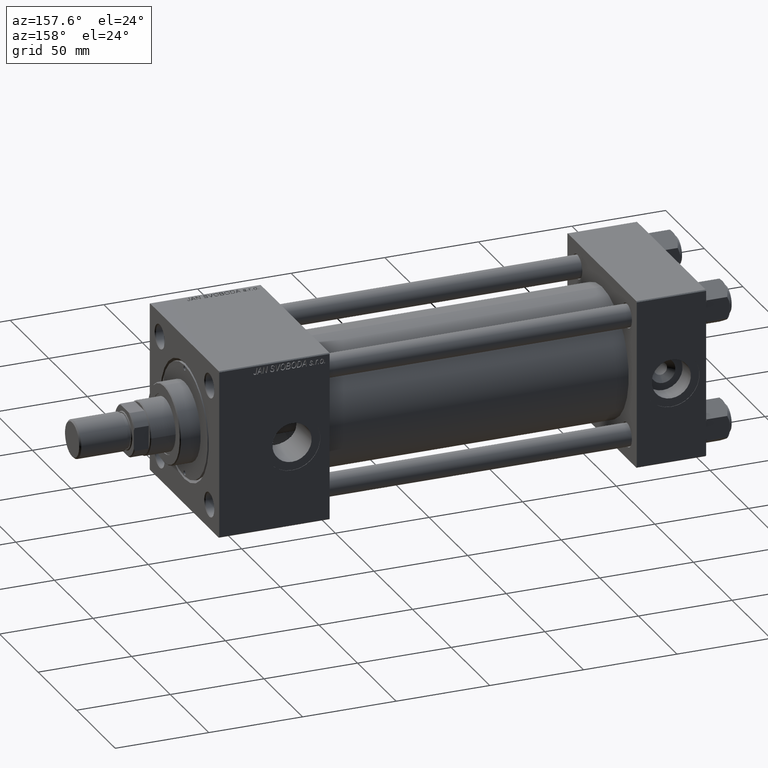
[diagram: clean part render]
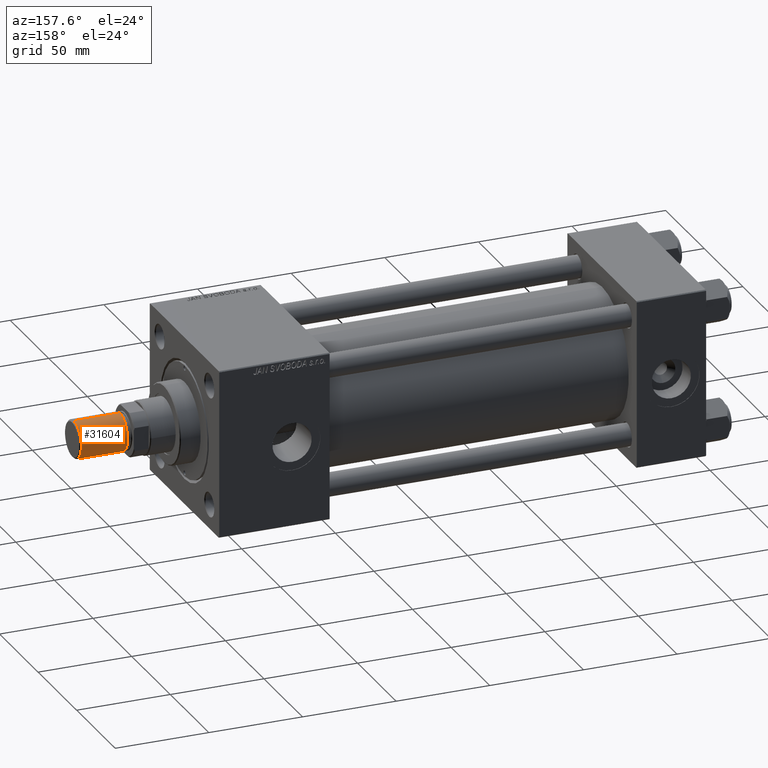
[diagram: same view with one face highlighted and labeled with its STEP entity id]
A machine part, auxiliary view. The second image highlights one B-rep face of the part: STEP entity #31604.
In plain terms, the highlighted cylindrical surface (edge-blend (fillet) strip) has radius 10 mm, axis along (1, -0, -0).
Its self-contained STEP definition (entity closure, byte-faithful):
#843 = EDGE_CURVE ( 'NONE', #51122, #23173, #27326, .T. ) ;
#1745 = DIRECTION ( 'NONE',  ( -0.000000000000000000, -0.000000000000000000, 1.000000000000000000 ) ) ;
#3591 = EDGE_CURVE ( 'NONE', #51122, #36950, #35245, .T. ) ;
#4812 = DIRECTION ( 'NONE',  ( -1.000000000000000000, 0.000000000000000000, 0.000000000000000000 ) ) ;
#5079 = CYLINDRICAL_SURFACE ( 'NONE', #9904, 10.00000000000000000 ) ;
#6345 = CARTESIAN_POINT ( 'NONE',  ( 0.000000000000000000, 0.000000000000000000, 25.50000000000000000 ) ) ;
#6991 = CARTESIAN_POINT ( 'NONE',  ( 10.00000000000000000, 1.224646799147353256E-15, 25.50000000000000000 ) ) ;
#8389 = AXIS2_PLACEMENT_3D ( 'NONE', #14053, #1745, #42138 ) ;
#8837 = DIRECTION ( 'NONE',  ( -0.000000000000000000, -0.000000000000000000, -1.000000000000000000 ) ) ;
#9831 = CARTESIAN_POINT ( 'NONE',  ( -10.00000000000000000, 0.000000000000000000, 25.50000000000000000 ) ) ;
#9904 = AXIS2_PLACEMENT_3D ( 'NONE', #29164, #8837, #4812 ) ;
#11537 = DIRECTION ( 'NONE',  ( -0.000000000000000000, -0.000000000000000000, -1.000000000000000000 ) ) ;
#11552 = ORIENTED_EDGE ( 'NONE', *, *, #14452, .T. ) ;
#12343 = CARTESIAN_POINT ( 'NONE',  ( -10.00000000000000000, 0.000000000000000000, 0.8000000000000055955 ) ) ;
#13367 = FACE_OUTER_BOUND ( 'NONE', #40417, .T. ) ;
#14053 = CARTESIAN_POINT ( 'NONE',  ( 0.000000000000000000, 0.000000000000000000, 0.8000000000000055955 ) ) ;
#14367 = DIRECTION ( 'NONE',  ( 0.000000000000000000, 0.000000000000000000, 1.000000000000000000 ) ) ;
#14399 = CARTESIAN_POINT ( 'NONE',  ( 10.00000000000000000, 1.224646799147353256E-15, 0.8000000000000055955 ) ) ;
#14452 = EDGE_CURVE ( 'NONE', #23173, #46095, #40845, .T. ) ;
#14638 = DIRECTION ( 'NONE',  ( 1.000000000000000000, 0.000000000000000000, 0.000000000000000000 ) ) ;
#19852 = AXIS2_PLACEMENT_3D ( 'NONE', #6345, #14367, #14638 ) ;
#21909 = CARTESIAN_POINT ( 'NONE',  ( -10.00000000000000000, 0.000000000000000000, 25.50000000000000000 ) ) ;
#22340 = CARTESIAN_POINT ( 'NONE',  ( 10.00000000000000000, 1.224646799147353256E-15, 25.50000000000000000 ) ) ;
#23173 = VERTEX_POINT ( 'NONE', #14399 ) ;
#23230 = VECTOR ( 'NONE', #50546, 1000.000000000000000 ) ;
#25407 = LINE ( 'NONE', #21909, #23230 ) ;
#25671 = VECTOR ( 'NONE', #11537, 1000.000000000000000 ) ;
#27204 = ORIENTED_EDGE ( 'NONE', *, *, #28048, .F. ) ;
#27326 = LINE ( 'NONE', #6991, #25671 ) ;
#28048 = EDGE_CURVE ( 'NONE', #36950, #46095, #25407, .T. ) ;
#29164 = CARTESIAN_POINT ( 'NONE',  ( 0.000000000000000000, 0.000000000000000000, 25.50000000000000000 ) ) ;
#31604 = ADVANCED_FACE ( 'NONE', ( #13367 ), #5079, .T. ) ;
#35245 = CIRCLE ( 'NONE', #19852, 10.00000000000000000 ) ;
#36950 = VERTEX_POINT ( 'NONE', #9831 ) ;
#39191 = ORIENTED_EDGE ( 'NONE', *, *, #3591, .F. ) ;
#40417 = EDGE_LOOP ( 'NONE', ( #39191, #42745, #11552, #27204 ) ) ;
#40845 = CIRCLE ( 'NONE', #8389, 10.00000000000000000 ) ;
#42138 = DIRECTION ( 'NONE',  ( 1.000000000000000000, 0.000000000000000000, 0.000000000000000000 ) ) ;
#42745 = ORIENTED_EDGE ( 'NONE', *, *, #843, .T. ) ;
#46095 = VERTEX_POINT ( 'NONE', #12343 ) ;
#50546 = DIRECTION ( 'NONE',  ( -0.000000000000000000, -0.000000000000000000, -1.000000000000000000 ) ) ;
#51122 = VERTEX_POINT ( 'NONE', #22340 ) ;